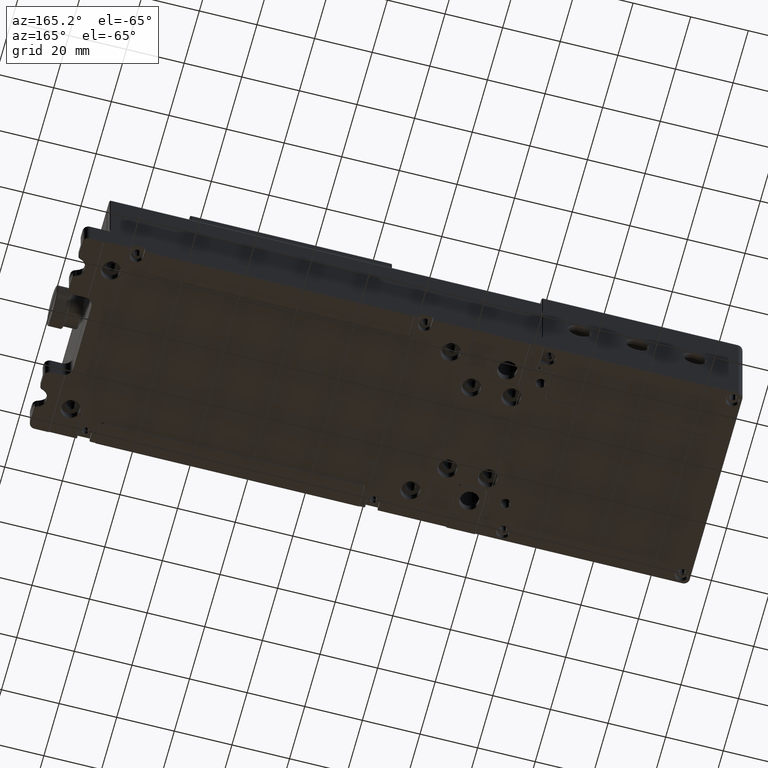
[diagram: clean part render]
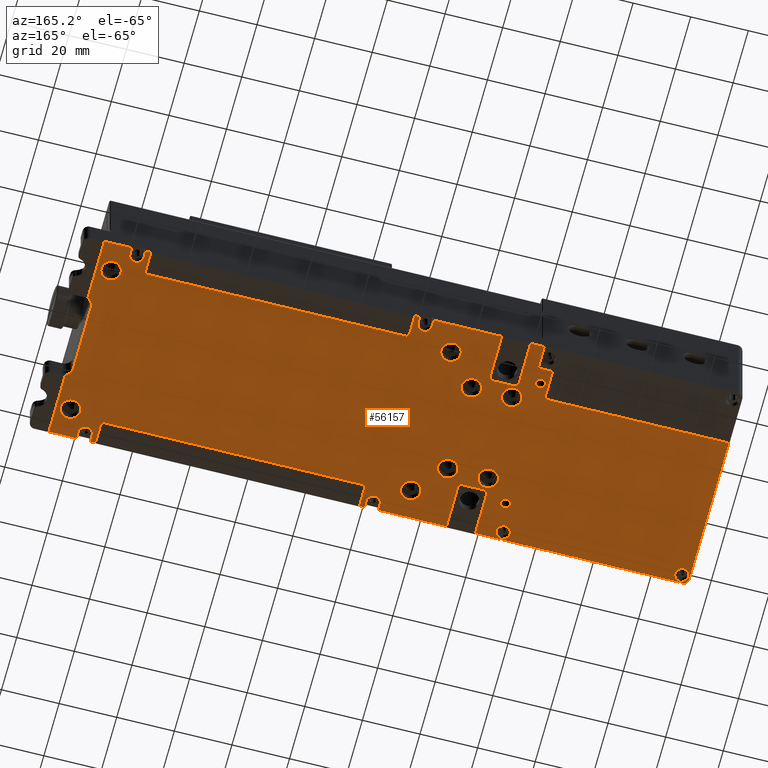
[diagram: same view with one face highlighted and labeled with its STEP entity id]
A machine part, auxiliary view. The second image highlights one B-rep face of the part: STEP entity #56157.
In plain terms, the highlighted planar face has unit normal (0, 0, 1).
Its self-contained STEP definition (entity closure, byte-faithful):
#1 = VECTOR ( 'NONE', #1020, 1000.000000000000000 ) ;
#61 = VERTEX_POINT ( 'NONE', #10943 ) ;
#70 = VERTEX_POINT ( 'NONE', #5756 ) ;
#79 = EDGE_CURVE ( 'NONE', #11715, #24487, #61105, .T. ) ;
#96 = DIRECTION ( 'NONE',  ( 1.000000000000000000, 0.000000000000000000, 0.000000000000000000 ) ) ;
#329 = AXIS2_PLACEMENT_3D ( 'NONE', #13577, #65168, #14287 ) ;
#331 = VECTOR ( 'NONE', #14780, 1000.000000000000000 ) ;
#336 = VERTEX_POINT ( 'NONE', #3492 ) ;
#627 = VECTOR ( 'NONE', #34481, 1000.000000000000000 ) ;
#653 = CARTESIAN_POINT ( 'NONE',  ( 52.37474001859770567, 20.53080254974720020, -5.000000000000000000 ) ) ;
#749 = LINE ( 'NONE', #45762, #30149 ) ;
#802 = VERTEX_POINT ( 'NONE', #43258 ) ;
#1020 = DIRECTION ( 'NONE',  ( 1.000000000000000000, 0.000000000000000000, 2.775866078067334364E-17 ) ) ;
#1052 = EDGE_CURVE ( 'NONE', #39827, #1533, #36920, .T. ) ;
#1090 = CIRCLE ( 'NONE', #41213, 1.000000000000000888 ) ;
#1141 = EDGE_CURVE ( 'NONE', #36348, #50092, #1537, .T. ) ;
#1143 = DIRECTION ( 'NONE',  ( 0.000000000000000000, 1.000000000000000000, 0.000000000000000000 ) ) ;
#1369 = ORIENTED_EDGE ( 'NONE', *, *, #12461, .T. ) ;
#1426 = DIRECTION ( 'NONE',  ( 0.000000000000000000, 0.000000000000000000, 1.000000000000000000 ) ) ;
#1478 = ORIENTED_EDGE ( 'NONE', *, *, #57472, .T. ) ;
#1515 = CARTESIAN_POINT ( 'NONE',  ( 68.57474001859770851, 27.53080254974720020, -5.000000000000000000 ) ) ;
#1533 = VERTEX_POINT ( 'NONE', #42261 ) ;
#1537 = CIRCLE ( 'NONE', #40445, 3.000000000000002665 ) ;
#1631 = CIRCLE ( 'NONE', #36005, 3.450000000000001510 ) ;
#1645 = AXIS2_PLACEMENT_3D ( 'NONE', #53790, #10241, #49702 ) ;
#1725 = CARTESIAN_POINT ( 'NONE',  ( -84.77525998140230001, -31.96919745025280335, -5.000000000000000000 ) ) ;
#1783 = DIRECTION ( 'NONE',  ( 1.000000000000000000, 0.000000000000000000, 0.000000000000000000 ) ) ;
#1837 = DIRECTION ( 'NONE',  ( 1.000000000000000000, 0.000000000000000000, 0.000000000000000000 ) ) ;
#1857 = CARTESIAN_POINT ( 'NONE',  ( -153.4252599814024904, 26.03080254974719665, -5.000000000000000000 ) ) ;
#1881 = CARTESIAN_POINT ( 'NONE',  ( -79.42525998140240517, -45.26919745025280406, -5.000000000000000000 ) ) ;
#1990 = DIRECTION ( 'NONE',  ( 1.000000000000000000, 0.000000000000000000, 0.000000000000000000 ) ) ;
#2108 = EDGE_CURVE ( 'NONE', #18218, #59978, #68288, .T. ) ;
#2325 = CARTESIAN_POINT ( 'NONE',  ( -39.22525998140234549, -45.46919745025279980, -5.000000000000000000 ) ) ;
#2515 = VERTEX_POINT ( 'NONE', #6249 ) ;
#2740 = EDGE_CURVE ( 'NONE', #3315, #35923, #13603, .T. ) ;
#2787 = ORIENTED_EDGE ( 'NONE', *, *, #10705, .T. ) ;
#2793 = EDGE_CURVE ( 'NONE', #33789, #336, #14687, .T. ) ;
#2809 = CIRCLE ( 'NONE', #44063, 3.449999999999994849 ) ;
#2826 = CARTESIAN_POINT ( 'NONE',  ( 54.17474001859760335, 27.53080254974720020, -5.000000000000000000 ) ) ;
#2941 = EDGE_CURVE ( 'NONE', #42652, #55681, #67129, .T. ) ;
#3315 = VERTEX_POINT ( 'NONE', #22833 ) ;
#3459 = CARTESIAN_POINT ( 'NONE',  ( -60.97525998140230286, 6.530802549747209973, -5.000000000000000000 ) ) ;
#3492 = CARTESIAN_POINT ( 'NONE',  ( -41.02525998140230001, 27.53080254974720020, -5.000000000000000000 ) ) ;
#3534 = EDGE_CURVE ( 'NONE', #14833, #7331, #1090, .T. ) ;
#3605 = CARTESIAN_POINT ( 'NONE',  ( -41.02525998140234975, -45.46919745025279980, -5.000000000000000000 ) ) ;
#3778 = CIRCLE ( 'NONE', #33285, 1.000000000000000888 ) ;
#3799 = ORIENTED_EDGE ( 'NONE', *, *, #67234, .T. ) ;
#3889 = EDGE_CURVE ( 'NONE', #1533, #54057, #63972, .T. ) ;
#4255 = AXIS2_PLACEMENT_3D ( 'NONE', #50141, #72670, #22130 ) ;
#4290 = CIRCLE ( 'NONE', #29066, 1.000000000000000888 ) ;
#4362 = CARTESIAN_POINT ( 'NONE',  ( -38.22525998140235259, -37.46919745025279980, -5.000000000000000000 ) ) ;
#4443 = EDGE_LOOP ( 'NONE', ( #7247, #21985 ) ) ;
#4455 = CARTESIAN_POINT ( 'NONE',  ( 68.57474001859770851, -23.76919745025280051, -5.000000000000000000 ) ) ;
#4509 = AXIS2_PLACEMENT_3D ( 'NONE', #48435, #14887, #38850 ) ;
#4802 = CARTESIAN_POINT ( 'NONE',  ( 60.12474001859760619, -35.46919745025279980, -5.000000000000000000 ) ) ;
#4979 = AXIS2_PLACEMENT_3D ( 'NONE', #26326, #21134, #48792 ) ;
#5001 = CARTESIAN_POINT ( 'NONE',  ( -90.42525998140230570, 8.830802549747181374, -5.000000000000000000 ) ) ;
#5338 = ORIENTED_EDGE ( 'NONE', *, *, #49004, .F. ) ;
#5521 = CARTESIAN_POINT ( 'NONE',  ( -69.42525998140229149, 12.03080254974720020, -5.000000000000000000 ) ) ;
#5707 = EDGE_CURVE ( 'NONE', #22505, #52841, #71938, .T. ) ;
#5756 = CARTESIAN_POINT ( 'NONE',  ( 68.57474001859770851, -45.46919745025279980, -5.000000000000000000 ) ) ;
#5891 = VECTOR ( 'NONE', #65925, 1000.000000000000000 ) ;
#5991 = DIRECTION ( 'NONE',  ( 1.000000000000000000, 0.000000000000000000, 0.000000000000000000 ) ) ;
#6249 = CARTESIAN_POINT ( 'NONE',  ( 58.97474001859769999, -42.96919745025279980, -5.000000000000000000 ) ) ;
#6364 = VERTEX_POINT ( 'NONE', #56371 ) ;
#6453 = EDGE_CURVE ( 'NONE', #15114, #69572, #20126, .T. ) ;
#6483 = CARTESIAN_POINT ( 'NONE',  ( -79.42525998140240517, -45.46919745025279980, -5.000000000000000000 ) ) ;
#6740 = CARTESIAN_POINT ( 'NONE',  ( -54.42525998140230570, -35.46919745025279980, -5.000000000000000000 ) ) ;
#6774 = DIRECTION ( 'NONE',  ( 1.000000000000000000, 0.000000000000000000, 0.000000000000000000 ) ) ;
#6872 = DIRECTION ( 'NONE',  ( 0.000000000000000000, 1.000000000000000000, 0.000000000000000000 ) ) ;
#6949 = ORIENTED_EDGE ( 'NONE', *, *, #6453, .T. ) ;
#6965 = DIRECTION ( 'NONE',  ( 0.000000000000000000, 0.000000000000000000, 1.000000000000000000 ) ) ;
#6979 = DIRECTION ( 'NONE',  ( 1.000000000000000000, 0.000000000000000000, 0.000000000000000000 ) ) ;
#7040 = FACE_BOUND ( 'NONE', #38095, .T. ) ;
#7059 = CIRCLE ( 'NONE', #17650, 1.000000000000000888 ) ;
#7158 = VERTEX_POINT ( 'NONE', #37258 ) ;
#7196 = ORIENTED_EDGE ( 'NONE', *, *, #21949, .T. ) ;
#7247 = ORIENTED_EDGE ( 'NONE', *, *, #28288, .T. ) ;
#7331 = VERTEX_POINT ( 'NONE', #55283 ) ;
#7416 = FACE_OUTER_BOUND ( 'NONE', #29231, .T. ) ;
#7455 = VECTOR ( 'NONE', #29933, 1000.000000000000000 ) ;
#7461 = CIRCLE ( 'NONE', #34590, 1.649999999999998579 ) ;
#7585 = VERTEX_POINT ( 'NONE', #66690 ) ;
#7716 = ORIENTED_EDGE ( 'NONE', *, *, #43885, .T. ) ;
#8148 = VECTOR ( 'NONE', #35438, 1000.000000000000000 ) ;
#8357 = CARTESIAN_POINT ( 'NONE',  ( -54.42525998140230570, -35.46919745025279980, -5.000000000000000000 ) ) ;
#8380 = AXIS2_PLACEMENT_3D ( 'NONE', #45780, #68280, #35475 ) ;
#8433 = DIRECTION ( 'NONE',  ( 1.000000000000000000, 0.000000000000000000, 0.000000000000000000 ) ) ;
#8467 = DIRECTION ( 'NONE',  ( -1.000000000000000000, 0.000000000000000000, 0.000000000000000000 ) ) ;
#8532 = ORIENTED_EDGE ( 'NONE', *, *, #72575, .T. ) ;
#8904 = VERTEX_POINT ( 'NONE', #25372 ) ;
#9076 = ORIENTED_EDGE ( 'NONE', *, *, #1052, .T. ) ;
#9164 = VERTEX_POINT ( 'NONE', #41535 ) ;
#9232 = AXIS2_PLACEMENT_3D ( 'NONE', #54739, #61727, #96 ) ;
#9243 = ORIENTED_EDGE ( 'NONE', *, *, #47806, .T. ) ;
#9427 = CARTESIAN_POINT ( 'NONE',  ( -60.97525998140230286, -24.46919745025279980, -5.000000000000000000 ) ) ;
#9464 = LINE ( 'NONE', #25719, #17735 ) ;
#10241 = DIRECTION ( 'NONE',  ( 0.000000000000000000, 0.000000000000000000, 1.000000000000000000 ) ) ;
#10518 = EDGE_CURVE ( 'NONE', #37343, #57176, #7461, .T. ) ;
#10519 = CIRCLE ( 'NONE', #51757, 3.450000000000001510 ) ;
#10537 = DIRECTION ( 'NONE',  ( 0.000000000000000000, 0.000000000000000000, 1.000000000000000000 ) ) ;
#10705 = EDGE_CURVE ( 'NONE', #55681, #70289, #23386, .T. ) ;
#10844 = VECTOR ( 'NONE', #30249, 1000.000000000000000 ) ;
#10943 = CARTESIAN_POINT ( 'NONE',  ( 54.17474001859760335, -45.46919745025279980, -5.000000000000000000 ) ) ;
#10945 = CARTESIAN_POINT ( 'NONE',  ( 56.57474001859770141, 25.03080254974720020, -5.000000000000000000 ) ) ;
#11011 = VERTEX_POINT ( 'NONE', #71648 ) ;
#11012 = VERTEX_POINT ( 'NONE', #72385 ) ;
#11091 = DIRECTION ( 'NONE',  ( 1.000000000000000000, 0.000000000000000000, 0.000000000000000000 ) ) ;
#11162 = VERTEX_POINT ( 'NONE', #58942 ) ;
#11169 = AXIS2_PLACEMENT_3D ( 'NONE', #60562, #50203, #32534 ) ;
#11353 = DIRECTION ( 'NONE',  ( -1.000000000000000000, 0.000000000000000000, 0.000000000000000000 ) ) ;
#11483 = ORIENTED_EDGE ( 'NONE', *, *, #45741, .T. ) ;
#11528 = CARTESIAN_POINT ( 'NONE',  ( -86.42525998140229149, 14.03080254974720020, -5.000000000000000000 ) ) ;
#11628 = AXIS2_PLACEMENT_3D ( 'NONE', #61360, #67626, #32969 ) ;
#11657 = CARTESIAN_POINT ( 'NONE',  ( -69.42525998140229149, -29.96919745025279980, -5.000000000000000000 ) ) ;
#11715 = VERTEX_POINT ( 'NONE', #62775 ) ;
#11791 = AXIS2_PLACEMENT_3D ( 'NONE', #28310, #62963, #17598 ) ;
#11936 = ORIENTED_EDGE ( 'NONE', *, *, #32798, .T. ) ;
#12014 = CIRCLE ( 'NONE', #19082, 2.399999999999999467 ) ;
#12035 = AXIS2_PLACEMENT_3D ( 'NONE', #15729, #49262, #71775 ) ;
#12461 = EDGE_CURVE ( 'NONE', #7158, #33789, #25258, .T. ) ;
#12571 = DIRECTION ( 'NONE',  ( 0.000000000000000000, 0.000000000000000000, 1.000000000000000000 ) ) ;
#12723 = CARTESIAN_POINT ( 'NONE',  ( -67.87525998140229433, 6.530802549747209973, -5.000000000000000000 ) ) ;
#12921 = CIRCLE ( 'NONE', #61251, 2.400000000000041211 ) ;
#12927 = CARTESIAN_POINT ( 'NONE',  ( 51.37474001859769857, 20.53080254974720020, -5.000000000000000000 ) ) ;
#12948 = CARTESIAN_POINT ( 'NONE',  ( -153.2252599814025018, 26.03080254974719665, -5.000000000000000000 ) ) ;
#12995 = ORIENTED_EDGE ( 'NONE', *, *, #54530, .T. ) ;
#13036 = DIRECTION ( 'NONE',  ( 0.000000000000000000, 0.000000000000000000, 1.000000000000000000 ) ) ;
#13262 = ORIENTED_EDGE ( 'NONE', *, *, #2941, .T. ) ;
#13293 = CARTESIAN_POINT ( 'NONE',  ( 52.37474001859770567, 19.53080254974720020, -5.000000000000000000 ) ) ;
#13451 = DIRECTION ( 'NONE',  ( 1.000000000000000000, 0.000000000000000000, 0.000000000000000000 ) ) ;
#13577 = CARTESIAN_POINT ( 'NONE',  ( -64.42525998140230570, 6.530802549747209973, -5.000000000000000000 ) ) ;
#13603 = LINE ( 'NONE', #66293, #63618 ) ;
#13904 = DIRECTION ( 'NONE',  ( 1.000000000000000000, 0.000000000000000000, 0.000000000000000000 ) ) ;
#14040 = CIRCLE ( 'NONE', #41134, 2.400000000000041211 ) ;
#14263 = LINE ( 'NONE', #60721, #58350 ) ;
#14279 = CARTESIAN_POINT ( 'NONE',  ( -78.42525998140230570, -24.46919745025279980, -5.000000000000000000 ) ) ;
#14287 = DIRECTION ( 'NONE',  ( 1.000000000000000000, 0.000000000000000000, 0.000000000000000000 ) ) ;
#14367 = AXIS2_PLACEMENT_3D ( 'NONE', #29079, #62616, #23907 ) ;
#14371 = CARTESIAN_POINT ( 'NONE',  ( -70.42525998140229149, 12.03080254974720020, -5.000000000000000000 ) ) ;
#14484 = VERTEX_POINT ( 'NONE', #56898 ) ;
#14507 = CARTESIAN_POINT ( 'NONE',  ( -41.02525998140234975, -42.96919745025279980, -5.000000000000000000 ) ) ;
#14564 = CIRCLE ( 'NONE', #24011, 1.000000000000000888 ) ;
#14602 = EDGE_CURVE ( 'NONE', #57176, #37343, #58467, .T. ) ;
#14687 = LINE ( 'NONE', #48973, #5891 ) ;
#14780 = DIRECTION ( 'NONE',  ( -1.000000000000000000, 0.000000000000000000, 0.000000000000000000 ) ) ;
#14833 = VERTEX_POINT ( 'NONE', #28768 ) ;
#14887 = DIRECTION ( 'NONE',  ( 0.000000000000000000, 0.000000000000000000, 1.000000000000000000 ) ) ;
#15114 = VERTEX_POINT ( 'NONE', #36723 ) ;
#15184 = CARTESIAN_POINT ( 'NONE',  ( -88.07525998140229717, 14.03080254974720020, -5.000000000000000000 ) ) ;
#15190 = EDGE_CURVE ( 'NONE', #59978, #802, #749, .T. ) ;
#15323 = CARTESIAN_POINT ( 'NONE',  ( 54.17474001859760335, -42.96919745025279980, -5.000000000000000000 ) ) ;
#15443 = VECTOR ( 'NONE', #22382, 1000.000000000000000 ) ;
#15550 = CARTESIAN_POINT ( 'NONE',  ( -54.42525998140230570, 17.53080254974720020, -5.000000000000000000 ) ) ;
#15721 = ORIENTED_EDGE ( 'NONE', *, *, #48096, .F. ) ;
#15729 = CARTESIAN_POINT ( 'NONE',  ( -86.42525998140229149, -31.96919745025280335, -5.000000000000000000 ) ) ;
#15812 = CARTESIAN_POINT ( 'NONE',  ( 66.57474001859769430, 27.53080254974720020, -5.000000000000000000 ) ) ;
#15817 = ORIENTED_EDGE ( 'NONE', *, *, #44701, .F. ) ;
#15915 = DIRECTION ( 'NONE',  ( -1.000000000000000000, 0.000000000000000000, 0.000000000000000000 ) ) ;
#16491 = CARTESIAN_POINT ( 'NONE',  ( -69.42525998140229149, 11.03080254974720020, -5.000000000000000000 ) ) ;
#16677 = ORIENTED_EDGE ( 'NONE', *, *, #1141, .T. ) ;
#17002 = LINE ( 'NONE', #22518, #40416 ) ;
#17007 = ORIENTED_EDGE ( 'NONE', *, *, #10518, .T. ) ;
#17317 = AXIS2_PLACEMENT_3D ( 'NONE', #42552, #37031, #1990 ) ;
#17452 = ORIENTED_EDGE ( 'NONE', *, *, #22978, .F. ) ;
#17477 = CARTESIAN_POINT ( 'NONE',  ( 56.57474001859760193, -42.96919745025279980, -5.000000000000000000 ) ) ;
#17573 = ORIENTED_EDGE ( 'NONE', *, *, #28526, .T. ) ;
#17598 = DIRECTION ( 'NONE',  ( 1.000000000000000000, 0.000000000000000000, 0.000000000000000000 ) ) ;
#17606 = EDGE_CURVE ( 'NONE', #36348, #6364, #72844, .T. ) ;
#17650 = AXIS2_PLACEMENT_3D ( 'NONE', #12927, #12571, #57566 ) ;
#17710 = VECTOR ( 'NONE', #65270, 1000.000000000000000 ) ;
#17735 = VECTOR ( 'NONE', #48928, 1000.000000000000000 ) ;
#17789 = ORIENTED_EDGE ( 'NONE', *, *, #46495, .T. ) ;
#17980 = ORIENTED_EDGE ( 'NONE', *, *, #65822, .T. ) ;
#18125 = CARTESIAN_POINT ( 'NONE',  ( 52.37474001859770567, 27.53080254974720020, -5.000000000000000000 ) ) ;
#18128 = EDGE_CURVE ( 'NONE', #34706, #35923, #39572, .T. ) ;
#18218 = VERTEX_POINT ( 'NONE', #23679 ) ;
#18498 = DIRECTION ( 'NONE',  ( 0.000000000000000000, -1.000000000000000000, 0.000000000000000000 ) ) ;
#18546 = DIRECTION ( 'NONE',  ( 1.000000000000000000, 0.000000000000000000, 0.000000000000000000 ) ) ;
#18579 = EDGE_CURVE ( 'NONE', #38152, #11011, #57510, .T. ) ;
#18937 = ORIENTED_EDGE ( 'NONE', *, *, #33928, .F. ) ;
#18949 = CARTESIAN_POINT ( 'NONE',  ( -45.82525998140239665, 26.03080254974719665, -5.000000000000000000 ) ) ;
#19082 = AXIS2_PLACEMENT_3D ( 'NONE', #52330, #6965, #1783 ) ;
#19195 = DIRECTION ( 'NONE',  ( 0.000000000000000000, 0.000000000000000000, 1.000000000000000000 ) ) ;
#19214 = FACE_BOUND ( 'NONE', #61318, .T. ) ;
#19484 = EDGE_LOOP ( 'NONE', ( #62661, #1478 ) ) ;
#19543 = VERTEX_POINT ( 'NONE', #4362 ) ;
#19571 = VERTEX_POINT ( 'NONE', #36870 ) ;
#19894 = EDGE_CURVE ( 'NONE', #49706, #40887, #10519, .T. ) ;
#19962 = VERTEX_POINT ( 'NONE', #2826 ) ;
#20126 = CIRCLE ( 'NONE', #56655, 3.449999999999994849 ) ;
#20296 = LINE ( 'NONE', #42806, #17710 ) ;
#20842 = ORIENTED_EDGE ( 'NONE', *, *, #38114, .T. ) ;
#20869 = CARTESIAN_POINT ( 'NONE',  ( -70.42525998140229149, -28.96919745025279980, -5.000000000000000000 ) ) ;
#20980 = ORIENTED_EDGE ( 'NONE', *, *, #3889, .T. ) ;
#21082 = DIRECTION ( 'NONE',  ( 1.000000000000000000, 0.000000000000000000, 0.000000000000000000 ) ) ;
#21134 = DIRECTION ( 'NONE',  ( 0.000000000000000000, 0.000000000000000000, 1.000000000000000000 ) ) ;
#21320 = ORIENTED_EDGE ( 'NONE', *, *, #64674, .F. ) ;
#21547 = DIRECTION ( 'NONE',  ( 0.000000000000000000, 0.000000000000000000, 1.000000000000000000 ) ) ;
#21665 = DIRECTION ( 'NONE',  ( 1.000000000000000000, 0.000000000000000000, 0.000000000000000000 ) ) ;
#21707 = VERTEX_POINT ( 'NONE', #32980 ) ;
#21844 = ORIENTED_EDGE ( 'NONE', *, *, #67570, .T. ) ;
#21946 = DIRECTION ( 'NONE',  ( 0.000000000000000000, 1.000000000000000000, 0.000000000000000000 ) ) ;
#21949 = EDGE_CURVE ( 'NONE', #42559, #33105, #58243, .T. ) ;
#21985 = ORIENTED_EDGE ( 'NONE', *, *, #50918, .T. ) ;
#22051 = EDGE_CURVE ( 'NONE', #9164, #39827, #25311, .T. ) ;
#22130 = DIRECTION ( 'NONE',  ( 1.000000000000000000, 0.000000000000000000, 0.000000000000000000 ) ) ;
#22382 = DIRECTION ( 'NONE',  ( 0.000000000000000000, 1.000000000000000000, 0.000000000000000000 ) ) ;
#22408 = ORIENTED_EDGE ( 'NONE', *, *, #39851, .F. ) ;
#22505 = VERTEX_POINT ( 'NONE', #11657 ) ;
#22518 = CARTESIAN_POINT ( 'NONE',  ( -84.92525998140229149, 19.33080254974720091, -5.000000000000000000 ) ) ;
#22667 = CARTESIAN_POINT ( 'NONE',  ( -88.07525998140229717, -31.96919745025280335, -5.000000000000000000 ) ) ;
#22833 = CARTESIAN_POINT ( 'NONE',  ( -79.42525998140240517, 27.53080254974720020, -5.000000000000000000 ) ) ;
#22890 = VECTOR ( 'NONE', #60223, 1000.000000000000000 ) ;
#22928 = EDGE_CURVE ( 'NONE', #51641, #38622, #1631, .T. ) ;
#22978 = EDGE_CURVE ( 'NONE', #14484, #70, #14263, .T. ) ;
#23004 = ORIENTED_EDGE ( 'NONE', *, *, #31234, .T. ) ;
#23153 = ORIENTED_EDGE ( 'NONE', *, *, #36082, .F. ) ;
#23386 = LINE ( 'NONE', #18949, #25001 ) ;
#23442 = DIRECTION ( 'NONE',  ( 0.000000000000000000, 1.000000000000000000, 0.000000000000000000 ) ) ;
#23509 = ORIENTED_EDGE ( 'NONE', *, *, #49268, .F. ) ;
#23538 = VERTEX_POINT ( 'NONE', #3459 ) ;
#23574 = VECTOR ( 'NONE', #18498, 1000.000000000000000 ) ;
#23590 = CIRCLE ( 'NONE', #31800, 1.649999999999998579 ) ;
#23679 = CARTESIAN_POINT ( 'NONE',  ( 68.57474001859770851, 5.830802549747209795, -5.000000000000000000 ) ) ;
#23763 = VECTOR ( 'NONE', #34315, 1000.000000000000000 ) ;
#23892 = VERTEX_POINT ( 'NONE', #71976 ) ;
#23907 = DIRECTION ( 'NONE',  ( 1.000000000000000000, 0.000000000000000000, 0.000000000000000000 ) ) ;
#23939 = LINE ( 'NONE', #35356, #1 ) ;
#24011 = AXIS2_PLACEMENT_3D ( 'NONE', #14371, #48285, #65975 ) ;
#24111 = LINE ( 'NONE', #69806, #50489 ) ;
#24171 = DIRECTION ( 'NONE',  ( 0.000000000000000000, 0.000000000000000000, 1.000000000000000000 ) ) ;
#24425 = DIRECTION ( 'NONE',  ( 0.000000000000000000, 1.000000000000000000, 0.000000000000000000 ) ) ;
#24442 = CARTESIAN_POINT ( 'NONE',  ( -41.02525998140234975, 26.03080254974719665, -5.000000000000000000 ) ) ;
#24487 = VERTEX_POINT ( 'NONE', #68904 ) ;
#24498 = VERTEX_POINT ( 'NONE', #653 ) ;
#24501 = CARTESIAN_POINT ( 'NONE',  ( 51.37474001859760619, -38.46919745025280690, -5.000000000000000000 ) ) ;
#24531 = CARTESIAN_POINT ( 'NONE',  ( -152.8252599814024961, -42.46919745025279980, -5.000000000000000000 ) ) ;
#24586 = CARTESIAN_POINT ( 'NONE',  ( -89.22525998140230286, 26.03080254974719665, -5.000000000000000000 ) ) ;
#24733 = CARTESIAN_POINT ( 'NONE',  ( -89.22525998140230286, 10.03080254974721974, -5.000000000000000000 ) ) ;
#24803 = CARTESIAN_POINT ( 'NONE',  ( -78.42525998140230570, 6.530802549747209973, -5.000000000000000000 ) ) ;
#24874 = CARTESIAN_POINT ( 'NONE',  ( -69.42525998140229149, -45.26919745025280406, -5.000000000000000000 ) ) ;
#24977 = LINE ( 'NONE', #51901, #49638 ) ;
#25001 = VECTOR ( 'NONE', #57686, 1000.000000000000000 ) ;
#25011 = CARTESIAN_POINT ( 'NONE',  ( 68.57474001859770851, 27.53080254974720020, -5.000000000000000000 ) ) ;
#25067 = AXIS2_PLACEMENT_3D ( 'NONE', #60466, #43499, #67070 ) ;
#25188 = ORIENTED_EDGE ( 'NONE', *, *, #41296, .F. ) ;
#25258 = CIRCLE ( 'NONE', #1645, 2.400000000000041211 ) ;
#25311 = CIRCLE ( 'NONE', #11169, 1.799999999999968292 ) ;
#25372 = CARTESIAN_POINT ( 'NONE',  ( -81.87525998140229433, 6.530802549747209973, -5.000000000000000000 ) ) ;
#25590 = CARTESIAN_POINT ( 'NONE',  ( 68.57474001859770851, -23.76919745025280051, -5.000000000000000000 ) ) ;
#25719 = CARTESIAN_POINT ( 'NONE',  ( 54.17474001859760335, 26.03080254974719665, -5.000000000000000000 ) ) ;
#25787 = LINE ( 'NONE', #36867, #10844 ) ;
#25798 = ORIENTED_EDGE ( 'NONE', *, *, #2740, .F. ) ;
#25884 = LINE ( 'NONE', #24442, #71540 ) ;
#25909 = AXIS2_PLACEMENT_3D ( 'NONE', #6740, #66866, #27793 ) ;
#26059 = DIRECTION ( 'NONE',  ( 0.000000000000000000, 0.000000000000000000, 1.000000000000000000 ) ) ;
#26210 = CIRCLE ( 'NONE', #34410, 2.400000000000041211 ) ;
#26326 = CARTESIAN_POINT ( 'NONE',  ( -88.42525998140230570, -42.46919745025279980, -5.000000000000000000 ) ) ;
#26417 = CARTESIAN_POINT ( 'NONE',  ( -50.97525998140230286, -35.46919745025279980, -5.000000000000000000 ) ) ;
#26491 = DIRECTION ( 'NONE',  ( 1.000000000000000000, 0.000000000000000000, 0.000000000000000000 ) ) ;
#26531 = DIRECTION ( 'NONE',  ( 0.000000000000000000, 0.000000000000000000, 1.000000000000000000 ) ) ;
#26566 = CARTESIAN_POINT ( 'NONE',  ( -90.82525998140229717, -42.46919745025279980, -5.000000000000000000 ) ) ;
#26844 = DIRECTION ( 'NONE',  ( 1.000000000000000000, 0.000000000000000000, 0.000000000000000000 ) ) ;
#26960 = VERTEX_POINT ( 'NONE', #66092 ) ;
#26993 = DIRECTION ( 'NONE',  ( 0.000000000000000000, 0.000000000000000000, 1.000000000000000000 ) ) ;
#27222 = DIRECTION ( 'NONE',  ( -1.000000000000000000, 0.000000000000000000, 0.000000000000000000 ) ) ;
#27378 = CIRCLE ( 'NONE', #12035, 1.649999999999998579 ) ;
#27744 = ORIENTED_EDGE ( 'NONE', *, *, #57847, .T. ) ;
#27793 = DIRECTION ( 'NONE',  ( 1.000000000000000000, 0.000000000000000000, 0.000000000000000000 ) ) ;
#28172 = CARTESIAN_POINT ( 'NONE',  ( -148.0252599814022005, -42.46919745025279980, -5.000000000000000000 ) ) ;
#28201 = CARTESIAN_POINT ( 'NONE',  ( -64.42525998140230570, 6.530802549747209973, -5.000000000000000000 ) ) ;
#28288 = EDGE_CURVE ( 'NONE', #33730, #52711, #34502, .T. ) ;
#28310 = CARTESIAN_POINT ( 'NONE',  ( -43.42525998140234833, -42.96919745025279980, -5.000000000000000000 ) ) ;
#28332 = LINE ( 'NONE', #61882, #55905 ) ;
#28423 = CARTESIAN_POINT ( 'NONE',  ( 58.97474001859769999, 26.03080254974719665, -5.000000000000000000 ) ) ;
#28526 = EDGE_CURVE ( 'NONE', #70289, #43924, #52429, .T. ) ;
#28556 = VECTOR ( 'NONE', #11091, 1000.000000000000000 ) ;
#28751 = CARTESIAN_POINT ( 'NONE',  ( -67.87525998140229433, -24.46919745025279980, -5.000000000000000000 ) ) ;
#28768 = CARTESIAN_POINT ( 'NONE',  ( -39.22525998140234549, 20.53080254974720020, -5.000000000000000000 ) ) ;
#28806 = DIRECTION ( 'NONE',  ( 0.000000000000000000, 0.000000000000000000, 1.000000000000000000 ) ) ;
#28990 = CARTESIAN_POINT ( 'NONE',  ( 58.97474001859769999, 26.03080254974719665, -5.000000000000000000 ) ) ;
#29066 = AXIS2_PLACEMENT_3D ( 'NONE', #24501, #68378, #34840 ) ;
#29079 = CARTESIAN_POINT ( 'NONE',  ( -78.42525998140230570, 6.530802549747209973, -5.000000000000000000 ) ) ;
#29137 = CARTESIAN_POINT ( 'NONE',  ( -78.42525998140240517, -29.96919745025279980, -5.000000000000000000 ) ) ;
#29194 = FACE_BOUND ( 'NONE', #59283, .T. ) ;
#29231 = EDGE_LOOP ( 'NONE', ( #9243, #11483, #65481, #71108, #42129, #46736, #37670, #5338, #18937, #68047, #13262, #2787, #17573, #56937, #42528, #54058, #48477, #64141, #66793, #68721, #9076, #20980, #8532, #57813, #17980, #23509, #56907, #25798, #25188, #27744, #69441, #62063, #21320, #39193, #34167, #1369, #34313, #23153, #48340, #48962, #65998, #50559, #15721, #15817, #11936, #59106, #49094, #32991, #31368, #22408, #67769, #58119, #16677, #39749, #70156, #17452, #30769 ) ) ;
#29243 = CIRCLE ( 'NONE', #56341, 3.450000000000001510 ) ;
#29387 = VECTOR ( 'NONE', #68807, 1000.000000000000000 ) ;
#29585 = VECTOR ( 'NONE', #1143, 1000.000000000000000 ) ;
#29721 = LINE ( 'NONE', #28990, #47316 ) ;
#29903 = CARTESIAN_POINT ( 'NONE',  ( 63.57474001859760193, -35.46919745025279980, -5.000000000000000000 ) ) ;
#29924 = PLANE ( 'NONE',  #58955 ) ;
#29933 = DIRECTION ( 'NONE',  ( -1.224646799147351975E-16, 1.000000000000000000, 0.000000000000000000 ) ) ;
#29968 = VERTEX_POINT ( 'NONE', #5521 ) ;
#30149 = VECTOR ( 'NONE', #46124, 1000.000000000000000 ) ;
#30174 = VECTOR ( 'NONE', #24425, 1000.000000000000000 ) ;
#30249 = DIRECTION ( 'NONE',  ( -1.000000000000000000, 0.000000000000000000, 0.000000000000000000 ) ) ;
#30557 = EDGE_CURVE ( 'NONE', #26960, #41305, #36345, .T. ) ;
#30642 = FACE_BOUND ( 'NONE', #4443, .T. ) ;
#30769 = ORIENTED_EDGE ( 'NONE', *, *, #57112, .T. ) ;
#31045 = VECTOR ( 'NONE', #8467, 1000.000000000000000 ) ;
#31191 = DIRECTION ( 'NONE',  ( 1.000000000000000000, 0.000000000000000000, 0.000000000000000000 ) ) ;
#31234 = EDGE_CURVE ( 'NONE', #35545, #46396, #14040, .T. ) ;
#31368 = ORIENTED_EDGE ( 'NONE', *, *, #2108, .F. ) ;
#31404 = AXIS2_PLACEMENT_3D ( 'NONE', #11528, #56528, #5991 ) ;
#31444 = EDGE_CURVE ( 'NONE', #45078, #23892, #40423, .T. ) ;
#31509 = VERTEX_POINT ( 'NONE', #63256 ) ;
#31510 = VERTEX_POINT ( 'NONE', #12723 ) ;
#31790 = EDGE_CURVE ( 'NONE', #38622, #51641, #64732, .T. ) ;
#31800 = AXIS2_PLACEMENT_3D ( 'NONE', #32868, #28806, #68237 ) ;
#31840 = CARTESIAN_POINT ( 'NONE',  ( -83.42525998140230570, -45.46919745025279980, -5.000000000000000000 ) ) ;
#32074 = VERTEX_POINT ( 'NONE', #38417 ) ;
#32190 = EDGE_CURVE ( 'NONE', #41804, #51824, #23590, .T. ) ;
#32374 = DIRECTION ( 'NONE',  ( 0.000000000000000000, 0.000000000000000000, 1.000000000000000000 ) ) ;
#32518 = CARTESIAN_POINT ( 'NONE',  ( -70.42525998140229149, -29.96919745025279980, -5.000000000000000000 ) ) ;
#32534 = DIRECTION ( 'NONE',  ( 1.000000000000000000, 0.000000000000000000, 0.000000000000000000 ) ) ;
#32725 = LINE ( 'NONE', #66272, #55446 ) ;
#32798 = EDGE_CURVE ( 'NONE', #19962, #36261, #9464, .T. ) ;
#32868 = CARTESIAN_POINT ( 'NONE',  ( -86.42525998140229149, -31.96919745025280335, -5.000000000000000000 ) ) ;
#32930 = CARTESIAN_POINT ( 'NONE',  ( -50.97525998140230286, 17.53080254974720020, -5.000000000000000000 ) ) ;
#32969 = DIRECTION ( 'NONE',  ( 1.000000000000000000, 0.000000000000000000, 0.000000000000000000 ) ) ;
#32980 = CARTESIAN_POINT ( 'NONE',  ( 67.02474001859771136, -35.46919745025279980, -5.000000000000000000 ) ) ;
#32982 = CARTESIAN_POINT ( 'NONE',  ( -81.87525998140229433, -24.46919745025279980, -5.000000000000000000 ) ) ;
#32991 = ORIENTED_EDGE ( 'NONE', *, *, #15190, .F. ) ;
#33095 = CARTESIAN_POINT ( 'NONE',  ( -74.97525998140228864, 6.530802549747209973, -5.000000000000000000 ) ) ;
#33105 = VERTEX_POINT ( 'NONE', #57017 ) ;
#33126 = EDGE_CURVE ( 'NONE', #52395, #11011, #68437, .T. ) ;
#33285 = AXIS2_PLACEMENT_3D ( 'NONE', #37504, #10537, #59983 ) ;
#33287 = VECTOR ( 'NONE', #68067, 1000.000000000000000 ) ;
#33730 = VERTEX_POINT ( 'NONE', #26566 ) ;
#33789 = VERTEX_POINT ( 'NONE', #67812 ) ;
#33829 = VECTOR ( 'NONE', #21946, 1000.000000000000000 ) ;
#33928 = EDGE_CURVE ( 'NONE', #72758, #38413, #23939, .T. ) ;
#34167 = ORIENTED_EDGE ( 'NONE', *, *, #55042, .T. ) ;
#34313 = ORIENTED_EDGE ( 'NONE', *, *, #2793, .T. ) ;
#34315 = DIRECTION ( 'NONE',  ( 0.000000000000000000, 1.000000000000000000, 0.000000000000000000 ) ) ;
#34392 = EDGE_CURVE ( 'NONE', #19543, #32074, #60155, .T. ) ;
#34410 = AXIS2_PLACEMENT_3D ( 'NONE', #10945, #72192, #21665 ) ;
#34481 = DIRECTION ( 'NONE',  ( -1.000000000000000000, 0.000000000000000000, 0.000000000000000000 ) ) ;
#34502 = CIRCLE ( 'NONE', #4979, 2.399999999999999467 ) ;
#34590 = AXIS2_PLACEMENT_3D ( 'NONE', #47771, #71738, #31191 ) ;
#34706 = VERTEX_POINT ( 'NONE', #70042 ) ;
#34840 = DIRECTION ( 'NONE',  ( 1.000000000000000000, 0.000000000000000000, 0.000000000000000000 ) ) ;
#34897 = EDGE_LOOP ( 'NONE', ( #69901, #17789 ) ) ;
#34927 = CARTESIAN_POINT ( 'NONE',  ( 69.57474001859770851, -23.76919745025280051, -5.000000000000000000 ) ) ;
#34988 = LINE ( 'NONE', #52652, #42100 ) ;
#35316 = EDGE_CURVE ( 'NONE', #51824, #41804, #27378, .T. ) ;
#35356 = CARTESIAN_POINT ( 'NONE',  ( -83.42525998140230570, -45.46919745025279980, -5.000000000000000000 ) ) ;
#35438 = DIRECTION ( 'NONE',  ( 0.000000000000000000, -1.000000000000000000, 0.000000000000000000 ) ) ;
#35455 = DIRECTION ( 'NONE',  ( 1.000000000000000000, 0.000000000000000000, 0.000000000000000000 ) ) ;
#35459 = LINE ( 'NONE', #18125, #23574 ) ;
#35475 = DIRECTION ( 'NONE',  ( -1.000000000000000000, 0.000000000000000000, 0.000000000000000000 ) ) ;
#35545 = VERTEX_POINT ( 'NONE', #24531 ) ;
#35712 = DIRECTION ( 'NONE',  ( 0.000000000000000000, -1.000000000000000000, 0.000000000000000000 ) ) ;
#35829 = FACE_BOUND ( 'NONE', #68880, .T. ) ;
#35923 = VERTEX_POINT ( 'NONE', #41408 ) ;
#35988 = EDGE_CURVE ( 'NONE', #8904, #51235, #38011, .T. ) ;
#36005 = AXIS2_PLACEMENT_3D ( 'NONE', #8357, #62991, #13904 ) ;
#36082 = EDGE_CURVE ( 'NONE', #58286, #336, #66415, .T. ) ;
#36261 = VERTEX_POINT ( 'NONE', #39866 ) ;
#36345 = CIRCLE ( 'NONE', #4509, 3.450000000000001510 ) ;
#36348 = VERTEX_POINT ( 'NONE', #40962 ) ;
#36516 = ORIENTED_EDGE ( 'NONE', *, *, #31790, .T. ) ;
#36553 = CARTESIAN_POINT ( 'NONE',  ( 69.57474001859770851, -20.76919745025280051, -5.000000000000000000 ) ) ;
#36723 = CARTESIAN_POINT ( 'NONE',  ( -74.97525998140228864, -24.46919745025279980, -5.000000000000000000 ) ) ;
#36798 = DIRECTION ( 'NONE',  ( 0.000000000000000000, 0.000000000000000000, 1.000000000000000000 ) ) ;
#36810 = CARTESIAN_POINT ( 'NONE',  ( -45.82525998140239665, -45.26919745025280406, -5.000000000000000000 ) ) ;
#36867 = CARTESIAN_POINT ( 'NONE',  ( -151.4252599814024904, -45.26919745025280406, -5.000000000000000000 ) ) ;
#36870 = CARTESIAN_POINT ( 'NONE',  ( 51.37474001859769857, 19.53080254974720020, -5.000000000000000000 ) ) ;
#36920 = LINE ( 'NONE', #12948, #7455 ) ;
#37031 = DIRECTION ( 'NONE',  ( 0.000000000000000000, 0.000000000000000000, 1.000000000000000000 ) ) ;
#37108 = EDGE_CURVE ( 'NONE', #69572, #15114, #2809, .T. ) ;
#37258 = CARTESIAN_POINT ( 'NONE',  ( -45.82525998140239665, 25.03080254974720020, -5.000000000000000000 ) ) ;
#37326 = CIRCLE ( 'NONE', #17317, 3.449999999999994849 ) ;
#37343 = VERTEX_POINT ( 'NONE', #15184 ) ;
#37504 = CARTESIAN_POINT ( 'NONE',  ( -78.42525998140240517, 12.03080254974720020, -5.000000000000000000 ) ) ;
#37537 = EDGE_CURVE ( 'NONE', #19571, #7331, #46843, .T. ) ;
#37541 = CARTESIAN_POINT ( 'NONE',  ( -78.42525998140240517, -28.96919745025279980, -5.000000000000000000 ) ) ;
#37618 = EDGE_CURVE ( 'NONE', #60939, #21707, #44004, .T. ) ;
#37670 = ORIENTED_EDGE ( 'NONE', *, *, #34392, .T. ) ;
#37754 = EDGE_CURVE ( 'NONE', #11715, #29968, #14564, .T. ) ;
#37836 = LINE ( 'NONE', #40390, #627 ) ;
#37960 = LINE ( 'NONE', #71153, #33287 ) ;
#38011 = CIRCLE ( 'NONE', #56849, 3.449999999999994849 ) ;
#38095 = EDGE_LOOP ( 'NONE', ( #7196, #7716 ) ) ;
#38114 = EDGE_CURVE ( 'NONE', #23538, #31510, #52267, .T. ) ;
#38119 = AXIS2_PLACEMENT_3D ( 'NONE', #29903, #19195, #1837 ) ;
#38125 = LINE ( 'NONE', #38485, #22890 ) ;
#38152 = VERTEX_POINT ( 'NONE', #37541 ) ;
#38413 = VERTEX_POINT ( 'NONE', #64988 ) ;
#38417 = CARTESIAN_POINT ( 'NONE',  ( -39.22525998140234549, -38.46919745025280690, -5.000000000000000000 ) ) ;
#38426 = DIRECTION ( 'NONE',  ( 0.000000000000000000, 0.000000000000000000, 1.000000000000000000 ) ) ;
#38459 = CARTESIAN_POINT ( 'NONE',  ( -57.87525998140240091, -35.46919745025279980, -5.000000000000000000 ) ) ;
#38485 = CARTESIAN_POINT ( 'NONE',  ( -79.42525998140240517, 27.53080254974720020, -5.000000000000000000 ) ) ;
#38523 = CARTESIAN_POINT ( 'NONE',  ( 69.57474001859770851, 2.830802549747215124, -5.000000000000000000 ) ) ;
#38622 = VERTEX_POINT ( 'NONE', #38459 ) ;
#38850 = DIRECTION ( 'NONE',  ( 1.000000000000000000, 0.000000000000000000, 0.000000000000000000 ) ) ;
#38923 = CARTESIAN_POINT ( 'NONE',  ( 66.57474001859769430, 26.03080254974719665, -5.000000000000000000 ) ) ;
#39193 = ORIENTED_EDGE ( 'NONE', *, *, #61012, .F. ) ;
#39572 = LINE ( 'NONE', #43999, #43289 ) ;
#39749 = ORIENTED_EDGE ( 'NONE', *, *, #65682, .F. ) ;
#39827 = VERTEX_POINT ( 'NONE', #71389 ) ;
#39851 = EDGE_CURVE ( 'NONE', #11162, #18218, #37836, .T. ) ;
#39866 = CARTESIAN_POINT ( 'NONE',  ( 54.17474001859760335, 25.03080254974720020, -5.000000000000000000 ) ) ;
#39873 = ORIENTED_EDGE ( 'NONE', *, *, #30557, .T. ) ;
#40154 = AXIS2_PLACEMENT_3D ( 'NONE', #32518, #38426, #50547 ) ;
#40212 = CIRCLE ( 'NONE', #8380, 0.5000000000000004441 ) ;
#40232 = DIRECTION ( 'NONE',  ( 1.000000000000000000, 0.000000000000000000, 0.000000000000000000 ) ) ;
#40341 = DIRECTION ( 'NONE',  ( 0.000000000000000000, 0.000000000000000000, 1.000000000000000000 ) ) ;
#40390 = CARTESIAN_POINT ( 'NONE',  ( 68.57474001859770851, 5.830802549747209795, -5.000000000000000000 ) ) ;
#40416 = VECTOR ( 'NONE', #40232, 1000.000000000000000 ) ;
#40423 = LINE ( 'NONE', #62895, #54059 ) ;
#40445 = AXIS2_PLACEMENT_3D ( 'NONE', #36553, #59027, #57956 ) ;
#40611 = CARTESIAN_POINT ( 'NONE',  ( -39.22525998140234549, 27.53080254974720020, -5.000000000000000000 ) ) ;
#40887 = VERTEX_POINT ( 'NONE', #9427 ) ;
#40962 = CARTESIAN_POINT ( 'NONE',  ( 66.57474001859769430, -20.76919745025280051, -5.000000000000000000 ) ) ;
#40994 = FACE_BOUND ( 'NONE', #61548, .T. ) ;
#41134 = AXIS2_PLACEMENT_3D ( 'NONE', #70047, #26531, #8433 ) ;
#41157 = VERTEX_POINT ( 'NONE', #25590 ) ;
#41213 = AXIS2_PLACEMENT_3D ( 'NONE', #54070, #26059, #65494 ) ;
#41296 = EDGE_CURVE ( 'NONE', #11012, #3315, #38125, .T. ) ;
#41305 = VERTEX_POINT ( 'NONE', #32930 ) ;
#41350 = FACE_BOUND ( 'NONE', #69811, .T. ) ;
#41382 = EDGE_CURVE ( 'NONE', #23892, #61, #49160, .T. ) ;
#41408 = CARTESIAN_POINT ( 'NONE',  ( -84.22525998140230286, 27.53080254974720020, -5.000000000000000000 ) ) ;
#41535 = CARTESIAN_POINT ( 'NONE',  ( -151.4252599814024904, -45.26919745025280406, -5.000000000000000000 ) ) ;
#41714 = ORIENTED_EDGE ( 'NONE', *, *, #22928, .T. ) ;
#41804 = VERTEX_POINT ( 'NONE', #1725 ) ;
#41962 = VECTOR ( 'NONE', #6872, 1000.000000000000000 ) ;
#42071 = FACE_BOUND ( 'NONE', #34897, .T. ) ;
#42100 = VECTOR ( 'NONE', #35712, 1000.000000000000000 ) ;
#42129 = ORIENTED_EDGE ( 'NONE', *, *, #72111, .T. ) ;
#42261 = CARTESIAN_POINT ( 'NONE',  ( -153.2252599814025018, 8.830802549747181374, -5.000000000000000000 ) ) ;
#42304 = CARTESIAN_POINT ( 'NONE',  ( -64.42525998140230570, -24.46919745025279980, -5.000000000000000000 ) ) ;
#42528 = ORIENTED_EDGE ( 'NONE', *, *, #5707, .T. ) ;
#42552 = CARTESIAN_POINT ( 'NONE',  ( 63.57474001859760193, 17.53080254974720020, -5.000000000000000000 ) ) ;
#42559 = VERTEX_POINT ( 'NONE', #70559 ) ;
#42585 = DIRECTION ( 'NONE',  ( 1.000000000000000000, 0.000000000000000000, 0.000000000000000000 ) ) ;
#42652 = VERTEX_POINT ( 'NONE', #14507 ) ;
#42806 = CARTESIAN_POINT ( 'NONE',  ( 52.37474001859760619, -37.46919745025279980, -5.000000000000000000 ) ) ;
#42957 = EDGE_CURVE ( 'NONE', #14833, #58286, #45086, .T. ) ;
#43240 = CARTESIAN_POINT ( 'NONE',  ( 63.57474001859760193, 17.53080254974720020, -5.000000000000000000 ) ) ;
#43258 = CARTESIAN_POINT ( 'NONE',  ( 58.97474001859769999, 27.53080254974720020, -5.000000000000000000 ) ) ;
#43289 = VECTOR ( 'NONE', #60594, 1000.000000000000000 ) ;
#43499 = DIRECTION ( 'NONE',  ( 0.000000000000000000, 0.000000000000000000, 1.000000000000000000 ) ) ;
#43569 = CARTESIAN_POINT ( 'NONE',  ( 66.57474001859769430, 27.53080254974720020, -5.000000000000000000 ) ) ;
#43885 = EDGE_CURVE ( 'NONE', #33105, #42559, #37326, .T. ) ;
#43924 = VERTEX_POINT ( 'NONE', #24874 ) ;
#43999 = CARTESIAN_POINT ( 'NONE',  ( -84.22525998140230286, 26.03080254974719665, -5.000000000000000000 ) ) ;
#44004 = CIRCLE ( 'NONE', #38119, 3.449999999999994849 ) ;
#44063 = AXIS2_PLACEMENT_3D ( 'NONE', #45831, #40341, #62820 ) ;
#44701 = EDGE_CURVE ( 'NONE', #19962, #70208, #49711, .T. ) ;
#45078 = VERTEX_POINT ( 'NONE', #60240 ) ;
#45086 = LINE ( 'NONE', #69032, #30174 ) ;
#45404 = EDGE_CURVE ( 'NONE', #72758, #42652, #25884, .T. ) ;
#45741 = EDGE_CURVE ( 'NONE', #51674, #61, #34988, .T. ) ;
#45762 = CARTESIAN_POINT ( 'NONE',  ( 66.57474001859769430, 27.53080254974720020, -5.000000000000000000 ) ) ;
#45780 = CARTESIAN_POINT ( 'NONE',  ( -84.42525998140229149, 19.53080254974720020, -5.000000000000000000 ) ) ;
#45831 = CARTESIAN_POINT ( 'NONE',  ( -78.42525998140230570, -24.46919745025279980, -5.000000000000000000 ) ) ;
#46124 = DIRECTION ( 'NONE',  ( -1.000000000000000000, 0.000000000000000000, 0.000000000000000000 ) ) ;
#46160 = CIRCLE ( 'NONE', #14367, 3.449999999999994849 ) ;
#46396 = VERTEX_POINT ( 'NONE', #28172 ) ;
#46495 = EDGE_CURVE ( 'NONE', #40887, #49706, #63378, .T. ) ;
#46497 = EDGE_LOOP ( 'NONE', ( #23004, #3799 ) ) ;
#46736 = ORIENTED_EDGE ( 'NONE', *, *, #48341, .F. ) ;
#46843 = LINE ( 'NONE', #13293, #31045 ) ;
#46888 = CARTESIAN_POINT ( 'NONE',  ( -69.42525998140229149, -45.26919745025280406, -5.000000000000000000 ) ) ;
#46964 = AXIS2_PLACEMENT_3D ( 'NONE', #38523, #21547, #42585 ) ;
#47271 = DIRECTION ( 'NONE',  ( 0.000000000000000000, 0.000000000000000000, 1.000000000000000000 ) ) ;
#47316 = VECTOR ( 'NONE', #23442, 1000.000000000000000 ) ;
#47479 = CIRCLE ( 'NONE', #329, 3.450000000000001510 ) ;
#47654 = DIRECTION ( 'NONE',  ( 0.000000000000000000, 1.000000000000000000, 0.000000000000000000 ) ) ;
#47771 = CARTESIAN_POINT ( 'NONE',  ( -86.42525998140229149, 14.03080254974720020, -5.000000000000000000 ) ) ;
#47806 = EDGE_CURVE ( 'NONE', #2515, #51674, #12921, .T. ) ;
#48096 = EDGE_CURVE ( 'NONE', #70208, #24498, #35459, .T. ) ;
#48116 = CIRCLE ( 'NONE', #46964, 3.000000000000002665 ) ;
#48285 = DIRECTION ( 'NONE',  ( 0.000000000000000000, 0.000000000000000000, 1.000000000000000000 ) ) ;
#48340 = ORIENTED_EDGE ( 'NONE', *, *, #42957, .F. ) ;
#48341 = EDGE_CURVE ( 'NONE', #19543, #70707, #20296, .T. ) ;
#48435 = CARTESIAN_POINT ( 'NONE',  ( -54.42525998140230570, 17.53080254974720020, -5.000000000000000000 ) ) ;
#48477 = ORIENTED_EDGE ( 'NONE', *, *, #18579, .T. ) ;
#48792 = DIRECTION ( 'NONE',  ( 1.000000000000000000, 0.000000000000000000, 0.000000000000000000 ) ) ;
#48928 = DIRECTION ( 'NONE',  ( 0.000000000000000000, -1.000000000000000000, 0.000000000000000000 ) ) ;
#48962 = ORIENTED_EDGE ( 'NONE', *, *, #3534, .T. ) ;
#48973 = CARTESIAN_POINT ( 'NONE',  ( -41.02525998140230001, 26.03080254974719665, -5.000000000000000000 ) ) ;
#49004 = EDGE_CURVE ( 'NONE', #38413, #32074, #52863, .T. ) ;
#49094 = ORIENTED_EDGE ( 'NONE', *, *, #66254, .T. ) ;
#49160 = LINE ( 'NONE', #31840, #69965 ) ;
#49262 = DIRECTION ( 'NONE',  ( 0.000000000000000000, 0.000000000000000000, 1.000000000000000000 ) ) ;
#49268 = EDGE_CURVE ( 'NONE', #34706, #7585, #40212, .T. ) ;
#49638 = VECTOR ( 'NONE', #62608, 1000.000000000000000 ) ;
#49666 = DIRECTION ( 'NONE',  ( -1.000000000000000000, 0.000000000000000000, 0.000000000000000000 ) ) ;
#49702 = DIRECTION ( 'NONE',  ( 1.000000000000000000, 0.000000000000000000, 0.000000000000000000 ) ) ;
#49706 = VERTEX_POINT ( 'NONE', #28751 ) ;
#49711 = LINE ( 'NONE', #15812, #62156 ) ;
#49943 = EDGE_CURVE ( 'NONE', #36261, #71642, #26210, .T. ) ;
#49958 = EDGE_CURVE ( 'NONE', #38152, #52841, #32725, .T. ) ;
#50092 = VERTEX_POINT ( 'NONE', #34927 ) ;
#50141 = CARTESIAN_POINT ( 'NONE',  ( -90.42525998140230570, 10.03080254974721974, -5.000000000000000000 ) ) ;
#50203 = DIRECTION ( 'NONE',  ( 0.000000000000000000, 0.000000000000000000, -1.000000000000000000 ) ) ;
#50489 = VECTOR ( 'NONE', #47654, 1000.000000000000000 ) ;
#50547 = DIRECTION ( 'NONE',  ( 1.000000000000000000, 0.000000000000000000, 0.000000000000000000 ) ) ;
#50559 = ORIENTED_EDGE ( 'NONE', *, *, #63421, .T. ) ;
#50918 = EDGE_CURVE ( 'NONE', #52711, #33730, #12014, .T. ) ;
#51235 = VERTEX_POINT ( 'NONE', #33095 ) ;
#51641 = VERTEX_POINT ( 'NONE', #26417 ) ;
#51654 = CARTESIAN_POINT ( 'NONE',  ( -45.82525998140239665, 26.03080254974719665, -5.000000000000000000 ) ) ;
#51670 = FACE_BOUND ( 'NONE', #67734, .T. ) ;
#51674 = VERTEX_POINT ( 'NONE', #15323 ) ;
#51757 = AXIS2_PLACEMENT_3D ( 'NONE', #42304, #59984, #59620 ) ;
#51811 = CARTESIAN_POINT ( 'NONE',  ( -153.4252599814024904, 8.830802549747181374, -5.000000000000000000 ) ) ;
#51824 = VERTEX_POINT ( 'NONE', #22667 ) ;
#51901 = CARTESIAN_POINT ( 'NONE',  ( -69.42525998140229149, 27.53080254974720020, -5.000000000000000000 ) ) ;
#52267 = CIRCLE ( 'NONE', #55842, 3.450000000000001510 ) ;
#52330 = CARTESIAN_POINT ( 'NONE',  ( -88.42525998140230570, -42.46919745025279980, -5.000000000000000000 ) ) ;
#52395 = VERTEX_POINT ( 'NONE', #1881 ) ;
#52403 = FACE_BOUND ( 'NONE', #62055, .T. ) ;
#52429 = LINE ( 'NONE', #46888, #331 ) ;
#52652 = CARTESIAN_POINT ( 'NONE',  ( 54.17474001859760335, 26.03080254974719665, -5.000000000000000000 ) ) ;
#52658 = DIRECTION ( 'NONE',  ( 1.000000000000000000, 0.000000000000000000, 0.000000000000000000 ) ) ;
#52711 = VERTEX_POINT ( 'NONE', #54416 ) ;
#52841 = VERTEX_POINT ( 'NONE', #20869 ) ;
#52863 = LINE ( 'NONE', #2325, #15443 ) ;
#53790 = CARTESIAN_POINT ( 'NONE',  ( -43.42525998140234833, 25.03080254974720020, -5.000000000000000000 ) ) ;
#53944 = VECTOR ( 'NONE', #49666, 1000.000000000000000 ) ;
#54021 = CIRCLE ( 'NONE', #11628, 3.449999999999994849 ) ;
#54032 = ORIENTED_EDGE ( 'NONE', *, *, #37618, .T. ) ;
#54057 = VERTEX_POINT ( 'NONE', #5001 ) ;
#54058 = ORIENTED_EDGE ( 'NONE', *, *, #49958, .F. ) ;
#54059 = VECTOR ( 'NONE', #70587, 1000.000000000000000 ) ;
#54070 = CARTESIAN_POINT ( 'NONE',  ( -38.22525998140235259, 20.53080254974720020, -5.000000000000000000 ) ) ;
#54132 = VECTOR ( 'NONE', #13451, 1000.000000000000000 ) ;
#54327 = DIRECTION ( 'NONE',  ( 1.000000000000000000, 0.000000000000000000, 2.775866078067334364E-17 ) ) ;
#54416 = CARTESIAN_POINT ( 'NONE',  ( -86.02525998140230001, -42.46919745025279980, -5.000000000000000000 ) ) ;
#54429 = EDGE_CURVE ( 'NONE', #11162, #6364, #48116, .T. ) ;
#54530 = EDGE_CURVE ( 'NONE', #21707, #60939, #54021, .T. ) ;
#54680 = EDGE_CURVE ( 'NONE', #70, #41157, #24111, .T. ) ;
#54739 = CARTESIAN_POINT ( 'NONE',  ( -64.42525998140230570, -24.46919745025279980, -5.000000000000000000 ) ) ;
#54898 = CIRCLE ( 'NONE', #4255, 1.200000000000034373 ) ;
#55042 = EDGE_CURVE ( 'NONE', #31509, #7158, #63808, .T. ) ;
#55084 = VERTEX_POINT ( 'NONE', #24733 ) ;
#55233 = ORIENTED_EDGE ( 'NONE', *, *, #62008, .T. ) ;
#55283 = CARTESIAN_POINT ( 'NONE',  ( -38.22525998140235259, 19.53080254974720020, -5.000000000000000000 ) ) ;
#55446 = VECTOR ( 'NONE', #26844, 1000.000000000000000 ) ;
#55681 = VERTEX_POINT ( 'NONE', #55846 ) ;
#55842 = AXIS2_PLACEMENT_3D ( 'NONE', #28201, #32374, #26491 ) ;
#55846 = CARTESIAN_POINT ( 'NONE',  ( -45.82525998140239665, -42.96919745025279980, -5.000000000000000000 ) ) ;
#55905 = VECTOR ( 'NONE', #11353, 1000.000000000000000 ) ;
#56085 = LINE ( 'NONE', #4455, #28556 ) ;
#56157 = ADVANCED_FACE ( 'NONE', ( #40994, #51670, #57944, #30642, #41350, #42071, #35829, #63825, #52403, #29194, #19214, #7040, #7416 ), #29924, .F. ) ;
#56341 = AXIS2_PLACEMENT_3D ( 'NONE', #15550, #26993, #21082 ) ;
#56371 = CARTESIAN_POINT ( 'NONE',  ( 66.57474001859769430, 2.830802549747215124, -5.000000000000000000 ) ) ;
#56528 = DIRECTION ( 'NONE',  ( 0.000000000000000000, 0.000000000000000000, 1.000000000000000000 ) ) ;
#56607 = VERTEX_POINT ( 'NONE', #62657 ) ;
#56655 = AXIS2_PLACEMENT_3D ( 'NONE', #14279, #36798, #52658 ) ;
#56849 = AXIS2_PLACEMENT_3D ( 'NONE', #24803, #47271, #18546 ) ;
#56898 = CARTESIAN_POINT ( 'NONE',  ( 58.97474001859769999, -45.46919745025279980, -5.000000000000000000 ) ) ;
#56907 = ORIENTED_EDGE ( 'NONE', *, *, #18128, .T. ) ;
#56937 = ORIENTED_EDGE ( 'NONE', *, *, #66045, .F. ) ;
#57017 = CARTESIAN_POINT ( 'NONE',  ( 67.02474001859771136, 17.53080254974720020, -5.000000000000000000 ) ) ;
#57097 = AXIS2_PLACEMENT_3D ( 'NONE', #43240, #71267, #65349 ) ;
#57112 = EDGE_CURVE ( 'NONE', #14484, #2515, #62327, .T. ) ;
#57176 = VERTEX_POINT ( 'NONE', #67869 ) ;
#57221 = EDGE_CURVE ( 'NONE', #52395, #9164, #25787, .T. ) ;
#57472 = EDGE_CURVE ( 'NONE', #51235, #8904, #46160, .T. ) ;
#57510 = CIRCLE ( 'NONE', #59802, 1.000000000000000888 ) ;
#57566 = DIRECTION ( 'NONE',  ( 1.000000000000000000, 0.000000000000000000, 0.000000000000000000 ) ) ;
#57686 = DIRECTION ( 'NONE',  ( 0.000000000000000000, -1.000000000000000000, 0.000000000000000000 ) ) ;
#57813 = ORIENTED_EDGE ( 'NONE', *, *, #71694, .T. ) ;
#57847 = EDGE_CURVE ( 'NONE', #11012, #24487, #3778, .T. ) ;
#57944 = FACE_BOUND ( 'NONE', #46497, .T. ) ;
#57956 = DIRECTION ( 'NONE',  ( 1.000000000000000000, 0.000000000000000000, 0.000000000000000000 ) ) ;
#58119 = ORIENTED_EDGE ( 'NONE', *, *, #17606, .F. ) ;
#58243 = CIRCLE ( 'NONE', #57097, 3.449999999999994849 ) ;
#58286 = VERTEX_POINT ( 'NONE', #40611 ) ;
#58350 = VECTOR ( 'NONE', #59985, 1000.000000000000000 ) ;
#58372 = ORIENTED_EDGE ( 'NONE', *, *, #35316, .T. ) ;
#58467 = CIRCLE ( 'NONE', #31404, 1.649999999999998579 ) ;
#58655 = DIRECTION ( 'NONE',  ( 0.000000000000000000, 0.000000000000000000, 1.000000000000000000 ) ) ;
#58704 = DIRECTION ( 'NONE',  ( 0.000000000000000000, 1.000000000000000000, 0.000000000000000000 ) ) ;
#58942 = CARTESIAN_POINT ( 'NONE',  ( 69.57474001859770851, 5.830802549747209795, -5.000000000000000000 ) ) ;
#58955 = AXIS2_PLACEMENT_3D ( 'NONE', #1857, #58655, #35455 ) ;
#59027 = DIRECTION ( 'NONE',  ( 0.000000000000000000, 0.000000000000000000, 1.000000000000000000 ) ) ;
#59106 = ORIENTED_EDGE ( 'NONE', *, *, #49943, .T. ) ;
#59283 = EDGE_LOOP ( 'NONE', ( #39873, #55233 ) ) ;
#59620 = DIRECTION ( 'NONE',  ( 1.000000000000000000, 0.000000000000000000, 0.000000000000000000 ) ) ;
#59802 = AXIS2_PLACEMENT_3D ( 'NONE', #29137, #1426, #6979 ) ;
#59978 = VERTEX_POINT ( 'NONE', #25011 ) ;
#59983 = DIRECTION ( 'NONE',  ( 1.000000000000000000, 0.000000000000000000, 0.000000000000000000 ) ) ;
#59984 = DIRECTION ( 'NONE',  ( 0.000000000000000000, 0.000000000000000000, 1.000000000000000000 ) ) ;
#59985 = DIRECTION ( 'NONE',  ( 1.000000000000000000, 0.000000000000000000, 2.775866078067334364E-17 ) ) ;
#60114 = CARTESIAN_POINT ( 'NONE',  ( 58.97474001859769999, 25.03080254974720020, -5.000000000000000000 ) ) ;
#60155 = CIRCLE ( 'NONE', #72016, 1.000000000000000888 ) ;
#60223 = DIRECTION ( 'NONE',  ( 0.000000000000000000, 1.000000000000000000, 0.000000000000000000 ) ) ;
#60240 = CARTESIAN_POINT ( 'NONE',  ( 52.37474001859760619, -38.46919745025280690, -5.000000000000000000 ) ) ;
#60295 = CARTESIAN_POINT ( 'NONE',  ( 51.37474001859760619, -37.46919745025279980, -5.000000000000000000 ) ) ;
#60466 = CARTESIAN_POINT ( 'NONE',  ( -150.4252599814024904, -42.46919745025279980, -5.000000000000000000 ) ) ;
#60562 = CARTESIAN_POINT ( 'NONE',  ( -151.4252599814024904, -43.46919745025279980, -5.000000000000000000 ) ) ;
#60594 = DIRECTION ( 'NONE',  ( 0.000000000000000000, 1.000000000000000000, 0.000000000000000000 ) ) ;
#60721 = CARTESIAN_POINT ( 'NONE',  ( -83.42525998140230570, -45.46919745025279980, -5.000000000000000000 ) ) ;
#60939 = VERTEX_POINT ( 'NONE', #4802 ) ;
#61012 = EDGE_CURVE ( 'NONE', #31509, #56607, #28332, .T. ) ;
#61105 = LINE ( 'NONE', #16491, #53944 ) ;
#61251 = AXIS2_PLACEMENT_3D ( 'NONE', #17477, #13036, #6774 ) ;
#61318 = EDGE_LOOP ( 'NONE', ( #54032, #12995 ) ) ;
#61360 = CARTESIAN_POINT ( 'NONE',  ( 63.57474001859760193, -35.46919745025279980, -5.000000000000000000 ) ) ;
#61548 = EDGE_LOOP ( 'NONE', ( #62795, #58372 ) ) ;
#61633 = VECTOR ( 'NONE', #15915, 1000.000000000000000 ) ;
#61727 = DIRECTION ( 'NONE',  ( 0.000000000000000000, 0.000000000000000000, 1.000000000000000000 ) ) ;
#61852 = VERTEX_POINT ( 'NONE', #70152 ) ;
#61882 = CARTESIAN_POINT ( 'NONE',  ( 66.57474001859769430, 27.53080254974720020, -5.000000000000000000 ) ) ;
#62008 = EDGE_CURVE ( 'NONE', #41305, #26960, #29243, .T. ) ;
#62055 = EDGE_LOOP ( 'NONE', ( #21844, #20842 ) ) ;
#62063 = ORIENTED_EDGE ( 'NONE', *, *, #37754, .T. ) ;
#62156 = VECTOR ( 'NONE', #71133, 1000.000000000000000 ) ;
#62327 = LINE ( 'NONE', #28423, #23763 ) ;
#62608 = DIRECTION ( 'NONE',  ( 0.000000000000000000, -1.000000000000000000, 0.000000000000000000 ) ) ;
#62616 = DIRECTION ( 'NONE',  ( 0.000000000000000000, 0.000000000000000000, 1.000000000000000000 ) ) ;
#62657 = CARTESIAN_POINT ( 'NONE',  ( -69.42525998140229149, 27.53080254974720020, -5.000000000000000000 ) ) ;
#62661 = ORIENTED_EDGE ( 'NONE', *, *, #35988, .T. ) ;
#62775 = CARTESIAN_POINT ( 'NONE',  ( -70.42525998140229149, 11.03080254974720020, -5.000000000000000000 ) ) ;
#62795 = ORIENTED_EDGE ( 'NONE', *, *, #32190, .T. ) ;
#62820 = DIRECTION ( 'NONE',  ( 1.000000000000000000, 0.000000000000000000, 0.000000000000000000 ) ) ;
#62895 = CARTESIAN_POINT ( 'NONE',  ( 52.37474001859760619, -45.46919745025279980, -5.000000000000000000 ) ) ;
#62963 = DIRECTION ( 'NONE',  ( 0.000000000000000000, 0.000000000000000000, 1.000000000000000000 ) ) ;
#62991 = DIRECTION ( 'NONE',  ( 0.000000000000000000, 0.000000000000000000, 1.000000000000000000 ) ) ;
#63023 = CARTESIAN_POINT ( 'NONE',  ( 52.37474001859770567, 27.53080254974720020, -5.000000000000000000 ) ) ;
#63256 = CARTESIAN_POINT ( 'NONE',  ( -45.82525998140239665, 27.53080254974720020, -5.000000000000000000 ) ) ;
#63378 = CIRCLE ( 'NONE', #9232, 3.450000000000001510 ) ;
#63421 = EDGE_CURVE ( 'NONE', #19571, #24498, #7059, .T. ) ;
#63618 = VECTOR ( 'NONE', #27222, 1000.000000000000000 ) ;
#63808 = LINE ( 'NONE', #51654, #8148 ) ;
#63825 = FACE_BOUND ( 'NONE', #19484, .T. ) ;
#63972 = LINE ( 'NONE', #51811, #54132 ) ;
#64141 = ORIENTED_EDGE ( 'NONE', *, *, #33126, .F. ) ;
#64658 = DIRECTION ( 'NONE',  ( 1.000000000000000000, 0.000000000000000000, 0.000000000000000000 ) ) ;
#64674 = EDGE_CURVE ( 'NONE', #56607, #29968, #24977, .T. ) ;
#64732 = CIRCLE ( 'NONE', #25909, 3.450000000000001510 ) ;
#64988 = CARTESIAN_POINT ( 'NONE',  ( -39.22525998140234549, -45.46919745025279980, -5.000000000000000000 ) ) ;
#65168 = DIRECTION ( 'NONE',  ( 0.000000000000000000, 0.000000000000000000, 1.000000000000000000 ) ) ;
#65270 = DIRECTION ( 'NONE',  ( 1.000000000000000000, 0.000000000000000000, 0.000000000000000000 ) ) ;
#65349 = DIRECTION ( 'NONE',  ( 1.000000000000000000, 0.000000000000000000, 0.000000000000000000 ) ) ;
#65481 = ORIENTED_EDGE ( 'NONE', *, *, #41382, .F. ) ;
#65494 = DIRECTION ( 'NONE',  ( 1.000000000000000000, 0.000000000000000000, 0.000000000000000000 ) ) ;
#65682 = EDGE_CURVE ( 'NONE', #41157, #50092, #56085, .T. ) ;
#65822 = EDGE_CURVE ( 'NONE', #61852, #7585, #17002, .T. ) ;
#65925 = DIRECTION ( 'NONE',  ( 0.000000000000000000, 1.000000000000000000, 0.000000000000000000 ) ) ;
#65975 = DIRECTION ( 'NONE',  ( 1.000000000000000000, 0.000000000000000000, 0.000000000000000000 ) ) ;
#65998 = ORIENTED_EDGE ( 'NONE', *, *, #37537, .F. ) ;
#66045 = EDGE_CURVE ( 'NONE', #22505, #43924, #37960, .T. ) ;
#66092 = CARTESIAN_POINT ( 'NONE',  ( -57.87525998140240091, 17.53080254974720020, -5.000000000000000000 ) ) ;
#66213 = CIRCLE ( 'NONE', #25067, 2.400000000000041211 ) ;
#66254 = EDGE_CURVE ( 'NONE', #71642, #802, #29721, .T. ) ;
#66272 = CARTESIAN_POINT ( 'NONE',  ( -69.42525998140229149, -28.96919745025279980, -5.000000000000000000 ) ) ;
#66293 = CARTESIAN_POINT ( 'NONE',  ( 66.57474001859769430, 27.53080254974720020, -5.000000000000000000 ) ) ;
#66415 = LINE ( 'NONE', #43569, #61633 ) ;
#66690 = CARTESIAN_POINT ( 'NONE',  ( -84.88351755089790629, 19.33080254974720091, -5.000000000000000000 ) ) ;
#66793 = ORIENTED_EDGE ( 'NONE', *, *, #57221, .T. ) ;
#66866 = DIRECTION ( 'NONE',  ( 0.000000000000000000, 0.000000000000000000, 1.000000000000000000 ) ) ;
#67070 = DIRECTION ( 'NONE',  ( 1.000000000000000000, 0.000000000000000000, 0.000000000000000000 ) ) ;
#67129 = CIRCLE ( 'NONE', #11791, 2.400000000000027001 ) ;
#67234 = EDGE_CURVE ( 'NONE', #46396, #35545, #66213, .T. ) ;
#67570 = EDGE_CURVE ( 'NONE', #31510, #23538, #47479, .T. ) ;
#67626 = DIRECTION ( 'NONE',  ( 0.000000000000000000, 0.000000000000000000, 1.000000000000000000 ) ) ;
#67734 = EDGE_LOOP ( 'NONE', ( #71302, #17007 ) ) ;
#67769 = ORIENTED_EDGE ( 'NONE', *, *, #54429, .T. ) ;
#67812 = CARTESIAN_POINT ( 'NONE',  ( -41.02525998140230001, 25.03080254974720020, -5.000000000000000000 ) ) ;
#67869 = CARTESIAN_POINT ( 'NONE',  ( -84.77525998140230001, 14.03080254974720020, -5.000000000000000000 ) ) ;
#68047 = ORIENTED_EDGE ( 'NONE', *, *, #45404, .T. ) ;
#68067 = DIRECTION ( 'NONE',  ( 0.000000000000000000, -1.000000000000000000, 0.000000000000000000 ) ) ;
#68237 = DIRECTION ( 'NONE',  ( 1.000000000000000000, 0.000000000000000000, 0.000000000000000000 ) ) ;
#68280 = DIRECTION ( 'NONE',  ( 0.000000000000000000, 0.000000000000000000, -1.000000000000000000 ) ) ;
#68288 = LINE ( 'NONE', #1515, #29585 ) ;
#68378 = DIRECTION ( 'NONE',  ( 0.000000000000000000, 0.000000000000000000, 1.000000000000000000 ) ) ;
#68437 = LINE ( 'NONE', #6483, #29387 ) ;
#68721 = ORIENTED_EDGE ( 'NONE', *, *, #22051, .T. ) ;
#68807 = DIRECTION ( 'NONE',  ( 0.000000000000000000, 1.000000000000000000, 0.000000000000000000 ) ) ;
#68880 = EDGE_LOOP ( 'NONE', ( #36516, #41714 ) ) ;
#68904 = CARTESIAN_POINT ( 'NONE',  ( -78.42525998140240517, 11.03080254974720020, -5.000000000000000000 ) ) ;
#69032 = CARTESIAN_POINT ( 'NONE',  ( -39.22525998140234549, 27.53080254974720020, -5.000000000000000000 ) ) ;
#69441 = ORIENTED_EDGE ( 'NONE', *, *, #79, .F. ) ;
#69572 = VERTEX_POINT ( 'NONE', #32982 ) ;
#69806 = CARTESIAN_POINT ( 'NONE',  ( 68.57474001859770851, -45.46919745025279980, -5.000000000000000000 ) ) ;
#69811 = EDGE_LOOP ( 'NONE', ( #70349, #6949 ) ) ;
#69901 = ORIENTED_EDGE ( 'NONE', *, *, #19894, .T. ) ;
#69935 = LINE ( 'NONE', #24586, #41962 ) ;
#69965 = VECTOR ( 'NONE', #54327, 1000.000000000000000 ) ;
#70042 = CARTESIAN_POINT ( 'NONE',  ( -84.22525998140230286, 19.98906011924280435, -5.000000000000000000 ) ) ;
#70047 = CARTESIAN_POINT ( 'NONE',  ( -150.4252599814024904, -42.46919745025279980, -5.000000000000000000 ) ) ;
#70152 = CARTESIAN_POINT ( 'NONE',  ( -89.22525998140230286, 19.33080254974720091, -5.000000000000000000 ) ) ;
#70156 = ORIENTED_EDGE ( 'NONE', *, *, #54680, .F. ) ;
#70208 = VERTEX_POINT ( 'NONE', #63023 ) ;
#70215 = CARTESIAN_POINT ( 'NONE',  ( -38.22525998140235259, -38.46919745025280690, -5.000000000000000000 ) ) ;
#70289 = VERTEX_POINT ( 'NONE', #36810 ) ;
#70349 = ORIENTED_EDGE ( 'NONE', *, *, #37108, .T. ) ;
#70559 = CARTESIAN_POINT ( 'NONE',  ( 60.12474001859760619, 17.53080254974720020, -5.000000000000000000 ) ) ;
#70587 = DIRECTION ( 'NONE',  ( 0.000000000000000000, -1.000000000000000000, 0.000000000000000000 ) ) ;
#70707 = VERTEX_POINT ( 'NONE', #60295 ) ;
#71108 = ORIENTED_EDGE ( 'NONE', *, *, #31444, .F. ) ;
#71133 = DIRECTION ( 'NONE',  ( -1.000000000000000000, 0.000000000000000000, 0.000000000000000000 ) ) ;
#71153 = CARTESIAN_POINT ( 'NONE',  ( -69.42525998140229149, -45.46919745025279980, -5.000000000000000000 ) ) ;
#71267 = DIRECTION ( 'NONE',  ( 0.000000000000000000, 0.000000000000000000, 1.000000000000000000 ) ) ;
#71302 = ORIENTED_EDGE ( 'NONE', *, *, #14602, .T. ) ;
#71389 = CARTESIAN_POINT ( 'NONE',  ( -153.2252599814025018, -43.46919745025279980, -5.000000000000000000 ) ) ;
#71540 = VECTOR ( 'NONE', #58704, 1000.000000000000000 ) ;
#71642 = VERTEX_POINT ( 'NONE', #60114 ) ;
#71648 = CARTESIAN_POINT ( 'NONE',  ( -79.42525998140240517, -29.96919745025279980, -5.000000000000000000 ) ) ;
#71694 = EDGE_CURVE ( 'NONE', #55084, #61852, #69935, .T. ) ;
#71738 = DIRECTION ( 'NONE',  ( 0.000000000000000000, 0.000000000000000000, 1.000000000000000000 ) ) ;
#71775 = DIRECTION ( 'NONE',  ( 1.000000000000000000, 0.000000000000000000, 0.000000000000000000 ) ) ;
#71938 = CIRCLE ( 'NONE', #40154, 1.000000000000000888 ) ;
#71976 = CARTESIAN_POINT ( 'NONE',  ( 52.37474001859760619, -45.46919745025279980, -5.000000000000000000 ) ) ;
#72016 = AXIS2_PLACEMENT_3D ( 'NONE', #70215, #24171, #64658 ) ;
#72111 = EDGE_CURVE ( 'NONE', #45078, #70707, #4290, .T. ) ;
#72192 = DIRECTION ( 'NONE',  ( 0.000000000000000000, 0.000000000000000000, 1.000000000000000000 ) ) ;
#72385 = CARTESIAN_POINT ( 'NONE',  ( -79.42525998140240517, 12.03080254974720020, -5.000000000000000000 ) ) ;
#72575 = EDGE_CURVE ( 'NONE', #54057, #55084, #54898, .T. ) ;
#72670 = DIRECTION ( 'NONE',  ( 0.000000000000000000, 0.000000000000000000, 1.000000000000000000 ) ) ;
#72758 = VERTEX_POINT ( 'NONE', #3605 ) ;
#72844 = LINE ( 'NONE', #38923, #33829 ) ;